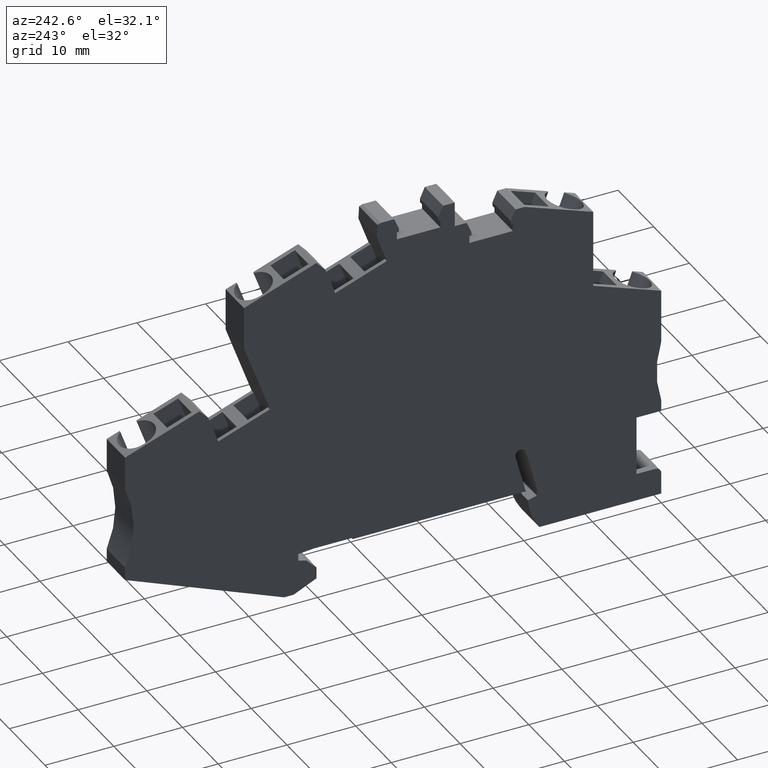
[diagram: clean part render]
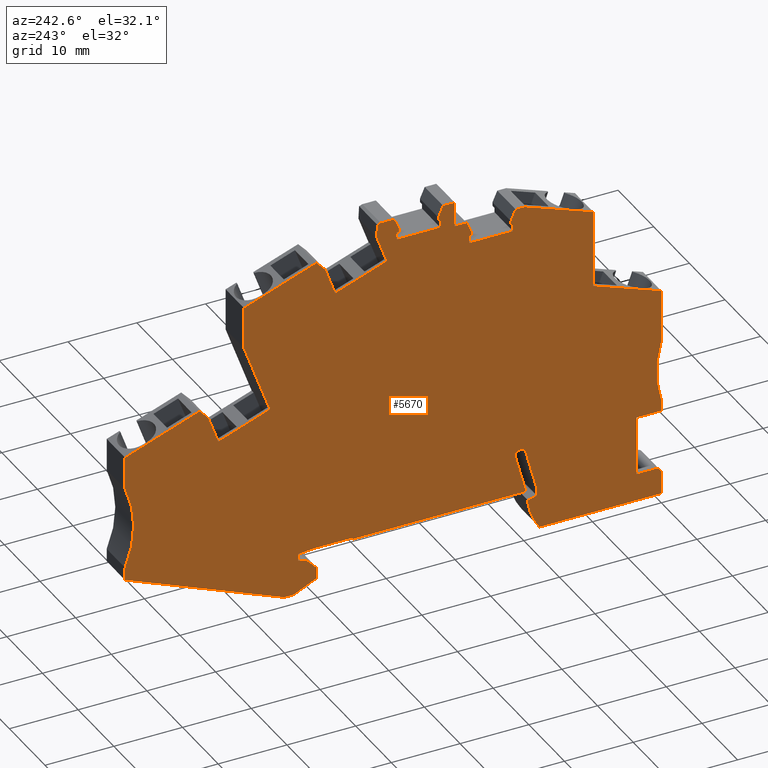
[diagram: same view with one face highlighted and labeled with its STEP entity id]
A machine part, auxiliary view. The second image highlights one B-rep face of the part: STEP entity #5670.
In plain terms, the highlighted planar face has unit normal (-1, 0, 0).
Its self-contained STEP definition (entity closure, byte-faithful):
#10=CARTESIAN_POINT('',(101.113826887599,-53.1567510120277,
48.7600000000302));
#20=DIRECTION('',(-4.8531042333675E-14,-8.75090144671021E-15,-1.));
#30=DIRECTION('',(-1.,0.,4.8531042333675E-14));
#40=AXIS2_PLACEMENT_3D('',#10,#20,#30);
#50=PLANE('',#40);
#60=CARTESIAN_POINT('',(106.837989107538,-53.1567510120277,
48.7600000000299));
#70=DIRECTION('',(-0.402320578210114,0.915498854367759,
1.15135967636753E-14));
#80=VECTOR('',#70,1.);
#90=LINE('',#60,#80);
#100=CARTESIAN_POINT('',(88.7196672216734,-11.9276818866778,
48.7600000000304));
#110=VERTEX_POINT('',#100);
#120=CARTESIAN_POINT('',(88.0225128467016,-10.3412752592971,
48.7600000000304));
#130=VERTEX_POINT('',#120);
#140=EDGE_CURVE('',#110,#130,#90,.T.);
#150=ORIENTED_EDGE('',*,*,#140,.F.);
#160=CARTESIAN_POINT('',(101.113826887599,-10.3412752592971,
48.7600000000298));
#170=DIRECTION('',(-1.,4.24690368568111E-28,4.8531042333675E-14));
#180=VECTOR('',#170,1.);
#190=LINE('',#160,#180);
#200=CARTESIAN_POINT('',(86.7242215350365,-10.3412752592971,
48.7600000000305));
#210=VERTEX_POINT('',#200);
#220=EDGE_CURVE('',#130,#210,#190,.T.);
#230=ORIENTED_EDGE('',*,*,#220,.F.);
#240=CARTESIAN_POINT('',(101.113826887599,-5.10388722812653,
48.7600000000298));
#250=DIRECTION('',(-0.939692620785904,-0.342020143325682,
4.85972469270354E-14));
#260=VECTOR('',#250,1.);
#270=LINE('',#240,#260);
#280=CARTESIAN_POINT('',(76.7321672216756,-13.9780856085318,
48.760000000031));
#290=VERTEX_POINT('',#280);
#300=EDGE_CURVE('',#210,#290,#270,.T.);
#310=ORIENTED_EDGE('',*,*,#300,.F.);
#320=CARTESIAN_POINT('',(76.7321672216756,-53.1567510120277,
48.7600000000314));
#330=DIRECTION('',(4.24690368568111E-28,-1.,8.75090144671021E-15));
#340=VECTOR('',#330,1.);
#350=LINE('',#320,#340);
#360=CARTESIAN_POINT('',(76.7321672216756,-25.258369996776,
48.7600000000311));
#370=VERTEX_POINT('',#360);
#380=EDGE_CURVE('',#290,#370,#350,.T.);
#390=ORIENTED_EDGE('',*,*,#380,.F.);
#400=CARTESIAN_POINT('',(101.113826887599,-16.3841716163707,
48.7600000000299));
#410=DIRECTION('',(-0.939692620785904,-0.342020143325682,
4.85972469270354E-14));
#420=VECTOR('',#410,1.);
#430=LINE('',#400,#420);
#440=CARTESIAN_POINT('',(66.8321672216755,-28.8616753160116,
48.7600000000316));
#450=VERTEX_POINT('',#440);
#460=EDGE_CURVE('',#370,#450,#430,.T.);
#470=ORIENTED_EDGE('',*,*,#460,.F.);
#480=CARTESIAN_POINT('',(66.8321672216755,-53.1567510120277,
48.7600000000318));
#490=DIRECTION('',(4.24690368568111E-28,-1.,8.75090144671021E-15));
#500=VECTOR('',#490,1.);
#510=LINE('',#480,#500);
#520=CARTESIAN_POINT('',(66.8321672216755,-36.5567508894079,
48.7600000000317));
#530=VERTEX_POINT('',#520);
#540=EDGE_CURVE('',#450,#530,#510,.T.);
#550=ORIENTED_EDGE('',*,*,#540,.F.);
#560=CARTESIAN_POINT('',(52.5230792389827,-41.0567510120289,
48.7600000000324));
#570=DIRECTION('',(-4.8531042333675E-14,-8.75090144671021E-15,-1.));
#580=DIRECTION('',(-1.,0.,4.8531042333675E-14));
#590=AXIS2_PLACEMENT_3D('',#560,#570,#580);
#600=CIRCLE('',#590,15.0000000000011);
#610=CARTESIAN_POINT('',(66.8321672602365,-45.556751012034,
48.7600000000318));
#620=VERTEX_POINT('',#610);
#630=EDGE_CURVE('',#530,#620,#600,.T.);
#640=ORIENTED_EDGE('',*,*,#630,.F.);
#650=CARTESIAN_POINT('',(66.8321672602433,-53.1567510120277,
48.7600000000318));
#660=DIRECTION('',(8.91857937436629E-13,-1.,8.75090144666692E-15));
#670=VECTOR('',#660,1.);
#680=LINE('',#650,#670);
#690=CARTESIAN_POINT('',(66.8321672602379,-47.1567510120314,
48.7600000000318));
#700=VERTEX_POINT('',#690);
#710=EDGE_CURVE('',#620,#700,#680,.T.);
#720=ORIENTED_EDGE('',*,*,#710,.F.);
#730=CARTESIAN_POINT('',(101.113826887599,-47.1567510120182,
48.7600000000301));
#740=DIRECTION('',(1.,3.85723199412607E-13,-4.85310423336783E-14));
#750=VECTOR('',#740,1.);
#760=LINE('',#730,#750);
#770=CARTESIAN_POINT('',(70.4321672216711,-47.15675101203,
48.7600000000316));
#780=VERTEX_POINT('',#770);
#790=EDGE_CURVE('',#700,#780,#760,.T.);
#800=ORIENTED_EDGE('',*,*,#790,.F.);
#810=CARTESIAN_POINT('',(70.4321672216734,-53.1567510120277,
48.7600000000317));
#820=DIRECTION('',(3.85723199412608E-13,-1.,8.75090144669149E-15));
#830=VECTOR('',#820,1.);
#840=LINE('',#810,#830);
#850=CARTESIAN_POINT('',(70.4321672216744,-55.7567510120309,
48.7600000000318));
#860=VERTEX_POINT('',#850);
#870=EDGE_CURVE('',#780,#860,#840,.T.);
#880=ORIENTED_EDGE('',*,*,#870,.F.);
#890=CARTESIAN_POINT('',(119.132167221676,-55.7567510120121,
48.7600000000318));
#900=DIRECTION('',(1.,3.85723199412608E-13,0.));
#910=VECTOR('',#900,1.);
#920=LINE('',#890,#910);
#930=CARTESIAN_POINT('',(67.7415687699821,-55.7567510120319,
48.7600000000318));
#940=VERTEX_POINT('',#930);
#950=EDGE_CURVE('',#940,#860,#920,.T.);
#960=ORIENTED_EDGE('',*,*,#950,.T.);
#970=CARTESIAN_POINT('',(67.7321672216754,-56.6567019056306,
48.7600000000318));
#980=DIRECTION('',(4.8531042333675E-14,8.75090144671021E-15,1.));
#990=DIRECTION('',(1.,3.85723199412607E-13,-4.85310423336783E-14));
#1000=AXIS2_PLACEMENT_3D('',#970,#980,#990);
#1010=CIRCLE('',#1000,0.89999999999984);
#1020=CARTESIAN_POINT('',(66.8321672216755,-56.656701905631,
48.7600000000319));
#1030=VERTEX_POINT('',#1020);
#1040=EDGE_CURVE('',#940,#1030,#1010,.T.);
#1050=ORIENTED_EDGE('',*,*,#1040,.F.);
#1060=CARTESIAN_POINT('',(66.8321672216755,-53.1567510120277,
48.7600000000318));
#1070=DIRECTION('',(4.24690368568111E-28,-1.,8.75090144671021E-15));
#1080=VECTOR('',#1070,1.);
#1090=LINE('',#1060,#1080);
#1100=CARTESIAN_POINT('',(66.8321672216755,-59.7567510120319,
48.7600000000319));
#1110=VERTEX_POINT('',#1100);
#1120=EDGE_CURVE('',#1030,#1110,#1090,.T.);
#1130=ORIENTED_EDGE('',*,*,#1120,.F.);
#1140=CARTESIAN_POINT('',(101.113826887599,-59.7567510120314,
48.7600000000302));
#1150=DIRECTION('',(1.,1.5498362828351E-14,-4.85310423336751E-14));
#1160=VECTOR('',#1150,1.);
#1170=LINE('',#1140,#1160);
#1180=CARTESIAN_POINT('',(84.5732235685394,-59.7567510120317,
48.760000000031));
#1190=VERTEX_POINT('',#1180);
#1200=EDGE_CURVE('',#1110,#1190,#1170,.T.);
#1210=ORIENTED_EDGE('',*,*,#1200,.F.);
#1220=CARTESIAN_POINT('',(76.838194542299,-54.2413792237296,
48.7600000000314));
#1230=DIRECTION('',(4.8531042333675E-14,8.75090144671021E-15,1.));
#1240=DIRECTION('',(1.,-4.24690368568111E-28,-4.8531042333675E-14));
#1250=AXIS2_PLACEMENT_3D('',#1220,#1230,#1240);
#1260=CIRCLE('',#1250,9.49999999999899);
#1270=CARTESIAN_POINT('',(86.2321672216754,-55.656751012028,
48.7600000000309));
#1280=VERTEX_POINT('',#1270);
#1290=EDGE_CURVE('',#1190,#1280,#1260,.T.);
#1300=ORIENTED_EDGE('',*,*,#1290,.F.);
#1310=CARTESIAN_POINT('',(86.2321672216645,-38.4000000000014,
48.7600000000308));
#1320=DIRECTION('',(-6.29263798783561E-13,1.,-8.75090144667967E-15));
#1330=VECTOR('',#1320,1.);
#1340=LINE('',#1310,#1330);
#1350=CARTESIAN_POINT('',(86.2321672216751,-55.2050849621875,
48.7600000000309));
#1360=VERTEX_POINT('',#1350);
#1370=EDGE_CURVE('',#1280,#1360,#1340,.T.);
#1380=ORIENTED_EDGE('',*,*,#1370,.F.);
#1390=CARTESIAN_POINT('',(119.132167221676,-64.0206133931754,
48.7600000000294));
#1400=DIRECTION('',(-0.965925826289041,0.258819045102623,
4.46124872105987E-14));
#1410=VECTOR('',#1400,1.);
#1420=LINE('',#1390,#1410);
#1430=CARTESIAN_POINT('',(84.9321672216758,-54.8567510120271,
48.760000000031));
#1440=VERTEX_POINT('',#1430);
#1450=EDGE_CURVE('',#1360,#1440,#1420,.T.);
#1460=ORIENTED_EDGE('',*,*,#1450,.F.);
#1470=CARTESIAN_POINT('',(84.9321672216758,-38.4000000000014,
48.7600000000308));
#1480=DIRECTION('',(-4.24690368568111E-28,1.,-8.75090144671021E-15));
#1490=VECTOR('',#1480,1.);
#1500=LINE('',#1470,#1490);
#1510=CARTESIAN_POINT('',(84.9321672216758,-53.7567510120189,
48.760000000031));
#1520=VERTEX_POINT('',#1510);
#1530=EDGE_CURVE('',#1440,#1520,#1500,.T.);
#1540=ORIENTED_EDGE('',*,*,#1530,.F.);
#1550=CARTESIAN_POINT('',(89.046996253715,-38.4000000000014,
48.7600000000306));
#1560=DIRECTION('',(-0.258819045102717,-0.965925826289016,
2.10134797453286E-14));
#1570=VECTOR('',#1560,1.);
#1580=LINE('',#1550,#1570);
#1590=CARTESIAN_POINT('',(86.5417528210729,-47.7496957759451,
48.7600000000308));
#1600=VERTEX_POINT('',#1590);
#1610=EDGE_CURVE('',#1600,#1520,#1580,.T.);
#1620=ORIENTED_EDGE('',*,*,#1610,.T.);
#1630=CARTESIAN_POINT('',(87.3144934821042,-47.9567510120272,
48.7600000000308));
#1640=DIRECTION('',(4.8531042333675E-14,8.75090144671021E-15,1.));
#1650=DIRECTION('',(1.,-4.24690368568111E-28,-4.8531042333675E-14));
#1660=AXIS2_PLACEMENT_3D('',#1630,#1640,#1650);
#1670=CIRCLE('',#1660,0.80000000000001);
#1680=CARTESIAN_POINT('',(87.5441583374887,-47.1904259803329,
48.7600000000308));
#1690=VERTEX_POINT('',#1680);
#1700=EDGE_CURVE('',#1690,#1600,#1670,.T.);
#1710=ORIENTED_EDGE('',*,*,#1700,.T.);
#1720=CARTESIAN_POINT('',(87.3843069702082,-47.8719298617444,
48.7600000000308));
#1730=DIRECTION('',(4.8531042333675E-14,8.75090144671021E-15,1.));
#1740=DIRECTION('',(1.,-4.24690368568111E-28,-4.8531042333675E-14));
#1750=AXIS2_PLACEMENT_3D('',#1720,#1730,#1740);
#1760=CIRCLE('',#1750,0.700000000000238);
#1770=CARTESIAN_POINT('',(88.0604550486107,-48.0531031933163,
48.7600000000308));
#1780=VERTEX_POINT('',#1770);
#1790=EDGE_CURVE('',#1780,#1690,#1760,.T.);
#1800=ORIENTED_EDGE('',*,*,#1790,.T.);
#1810=CARTESIAN_POINT('',(86.6929367371338,-53.1567510120277,
48.7600000000309));
#1820=DIRECTION('',(-0.25881904510258,-0.965925826289053,
2.10134797453223E-14));
#1830=VECTOR('',#1820,1.);
#1840=LINE('',#1810,#1830);
#1850=CARTESIAN_POINT('',(86.532167221675,-53.7567510120281,
48.7600000000309));
#1860=VERTEX_POINT('',#1850);
#1870=EDGE_CURVE('',#1780,#1860,#1840,.T.);
#1880=ORIENTED_EDGE('',*,*,#1870,.F.);
#1890=CARTESIAN_POINT('',(101.113826887599,-53.7567510120281,
48.7600000000302));
#1900=DIRECTION('',(1.,-4.24690368568111E-28,-4.8531042333675E-14));
#1910=VECTOR('',#1900,1.);
#1920=LINE('',#1890,#1910);
#1930=CARTESIAN_POINT('',(111.632167221676,-53.756751012028,
48.7600000000297));
#1940=VERTEX_POINT('',#1930);
#1950=EDGE_CURVE('',#1860,#1940,#1920,.T.);
#1960=ORIENTED_EDGE('',*,*,#1950,.F.);
#1970=CARTESIAN_POINT('',(111.632167221676,-53.556751012028,
48.7600000000297));
#1980=DIRECTION('',(4.8531042333675E-14,8.75090144671021E-15,1.));
#1990=DIRECTION('',(1.,-4.24690368568111E-28,-4.8531042333675E-14));
#2000=AXIS2_PLACEMENT_3D('',#1970,#1980,#1990);
#2010=CIRCLE('',#2000,0.2);
#2020=CARTESIAN_POINT('',(111.832167221676,-53.5567510120273,
48.7600000000297));
#2030=VERTEX_POINT('',#2020);
#2040=EDGE_CURVE('',#1940,#2030,#2010,.T.);
#2050=ORIENTED_EDGE('',*,*,#2040,.F.);
#2060=CARTESIAN_POINT('',(119.132167221676,-53.5567510120273,
48.7600000000293));
#2070=DIRECTION('',(1.,-6.12323399577924E-17,-4.8531042333675E-14));
#2080=VECTOR('',#2070,1.);
#2090=LINE('',#2060,#2080);
#2100=CARTESIAN_POINT('',(117.346156761124,-53.5567510120273,
48.7600000000294));
#2110=VERTEX_POINT('',#2100);
#2120=EDGE_CURVE('',#2030,#2110,#2090,.T.);
#2130=ORIENTED_EDGE('',*,*,#2120,.F.);
#2140=CARTESIAN_POINT('',(119.132167221676,-53.7130066802643,
48.7600000000293));
#2150=DIRECTION('',(0.996194698091746,-0.0871557427476583,
-4.75836757503735E-14));
#2160=VECTOR('',#2150,1.);
#2170=LINE('',#2140,#2160);
#2180=CARTESIAN_POINT('',(119.632167221676,-53.7567510120272,
48.7600000000293));
#2190=VERTEX_POINT('',#2180);
#2200=EDGE_CURVE('',#2110,#2190,#2170,.T.);
#2210=ORIENTED_EDGE('',*,*,#2200,.F.);
#2220=CARTESIAN_POINT('',(119.632167221676,-60.1454672502116,
48.7600000000293));
#2230=DIRECTION('',(-4.99600361034691E-16,-1.,8.75090144671023E-15));
#2240=VECTOR('',#2230,1.);
#2250=LINE('',#2220,#2240);
#2260=CARTESIAN_POINT('',(119.632167221676,-54.7567510120272,
48.7600000000293));
#2270=VERTEX_POINT('',#2260);
#2280=EDGE_CURVE('',#2190,#2270,#2250,.T.);
#2290=ORIENTED_EDGE('',*,*,#2280,.F.);
#2300=CARTESIAN_POINT('',(101.113826887599,-59.7187253497067,
48.7600000000302));
#2310=DIRECTION('',(-0.965925826289083,-0.258819045102467,
4.91422871230488E-14));
#2320=VECTOR('',#2310,1.);
#2330=LINE('',#2300,#2320);
#2340=CARTESIAN_POINT('',(118.468769762054,-55.0684824218092,
48.7600000000294));
#2350=VERTEX_POINT('',#2340);
#2360=EDGE_CURVE('',#2270,#2350,#2330,.T.);
#2370=ORIENTED_EDGE('',*,*,#2360,.F.);
#2380=CARTESIAN_POINT('',(101.113826887599,-72.4234252962643,
48.7600000000303));
#2390=DIRECTION('',(-0.707106781186548,-0.707106781186547,
4.05044508866569E-14));
#2400=VECTOR('',#2390,1.);
#2410=LINE('',#2380,#2400);
#2420=CARTESIAN_POINT('',(116.982167221676,-56.5550849621876,
48.7600000000294));
#2430=VERTEX_POINT('',#2420);
#2440=EDGE_CURVE('',#2350,#2430,#2410,.T.);
#2450=ORIENTED_EDGE('',*,*,#2440,.F.);
#2460=CARTESIAN_POINT('',(116.982167221676,-53.1567510120277,
48.7600000000294));
#2470=DIRECTION('',(-5.2735593665032E-16,-1.,8.75090144671023E-15));
#2480=VECTOR('',#2470,1.);
#2490=LINE('',#2460,#2480);
#2500=CARTESIAN_POINT('',(116.982167221676,-58.2082408140426,
48.7600000000295));
#2510=VERTEX_POINT('',#2500);
#2520=EDGE_CURVE('',#2430,#2510,#2490,.T.);
#2530=ORIENTED_EDGE('',*,*,#2520,.F.);
#2540=CARTESIAN_POINT('',(101.113826887599,-50.8087121940532,
48.7600000000302));
#2550=DIRECTION('',(0.90630778703666,-0.422618261740679,
-4.02857708219427E-14));
#2560=VECTOR('',#2550,1.);
#2570=LINE('',#2540,#2560);
#2580=CARTESIAN_POINT('',(120.302958057734,-59.7567510120274,
48.7600000000293));
#2590=VERTEX_POINT('',#2580);
#2600=EDGE_CURVE('',#2510,#2590,#2570,.T.);
#2610=ORIENTED_EDGE('',*,*,#2600,.F.);
#2620=CARTESIAN_POINT('',(101.113826887599,-59.7567510120274,
48.7600000000302));
#2630=DIRECTION('',(1.,0.,-4.8531042333675E-14));
#2640=VECTOR('',#2630,1.);
#2650=LINE('',#2620,#2640);
#2660=CARTESIAN_POINT('',(121.69547221685,-59.7567510120274,
48.7600000000292));
#2670=VERTEX_POINT('',#2660);
#2680=EDGE_CURVE('',#2590,#2670,#2650,.T.);
#2690=ORIENTED_EDGE('',*,*,#2680,.F.);
#2700=CARTESIAN_POINT('',(101.113826887599,-68.0482808060336,
48.7600000000303));
#2710=DIRECTION('',(0.927558981852562,0.373676779027864,
-4.82854128814641E-14));
#2720=VECTOR('',#2710,1.);
#2730=LINE('',#2700,#2720);
#2740=CARTESIAN_POINT('',(144.832167236373,-50.4358928872127,
48.760000000028));
#2750=VERTEX_POINT('',#2740);
#2760=EDGE_CURVE('',#2670,#2750,#2730,.T.);
#2770=ORIENTED_EDGE('',*,*,#2760,.F.);
#2780=CARTESIAN_POINT('',(144.832167236373,-53.1567510120277,
48.7600000000281));
#2790=DIRECTION('',(-6.1232339956943E-17,-1.,8.75090144671021E-15));
#2800=VECTOR('',#2790,1.);
#2810=LINE('',#2780,#2800);
#2820=CARTESIAN_POINT('',(144.832167236373,-48.5567510033959,
48.760000000028));
#2830=VERTEX_POINT('',#2820);
#2840=EDGE_CURVE('',#2830,#2750,#2810,.T.);
#2850=ORIENTED_EDGE('',*,*,#2840,.T.);
#2860=CARTESIAN_POINT('',(158.57989432124,-42.5567510033957,
48.7600000000273));
#2870=DIRECTION('',(-4.8531042333675E-14,-8.75090144671021E-15,-1.));
#2880=DIRECTION('',(-1.,0.,4.8531042333675E-14));
#2890=AXIS2_PLACEMENT_3D('',#2860,#2870,#2880);
#2900=CIRCLE('',#2890,15.);
#2910=CARTESIAN_POINT('',(144.832167221676,-36.5567510370718,
48.7600000000279));
#2920=VERTEX_POINT('',#2910);
#2930=EDGE_CURVE('',#2830,#2920,#2900,.T.);
#2940=ORIENTED_EDGE('',*,*,#2930,.F.);
#2950=CARTESIAN_POINT('',(144.832167221676,-53.1567510120277,
48.7600000000281));
#2960=DIRECTION('',(4.24690368568111E-28,-1.,8.75090144671021E-15));
#2970=VECTOR('',#2960,1.);
#2980=LINE('',#2950,#2970);
#2990=CARTESIAN_POINT('',(144.832167221676,-31.7902490553593,
48.7600000000279));
#3000=VERTEX_POINT('',#2990);
#3010=EDGE_CURVE('',#3000,#2920,#2980,.T.);
#3020=ORIENTED_EDGE('',*,*,#3010,.T.);
#3030=CARTESIAN_POINT('',(101.113826887599,-15.8780744822292,
48.7600000000298));
#3040=DIRECTION('',(-0.939692620785863,0.342020143325795,
4.26112777929669E-14));
#3050=VECTOR('',#3040,1.);
#3060=LINE('',#3030,#3050);
#3070=CARTESIAN_POINT('',(133.991244400932,-27.8444758366296,
48.7600000000284));
#3080=VERTEX_POINT('',#3070);
#3090=EDGE_CURVE('',#3000,#3080,#3060,.T.);
#3100=ORIENTED_EDGE('',*,*,#3090,.F.);
#3110=CARTESIAN_POINT('',(110.460405305438,-53.1567510120277,
48.7600000000297));
#3120=DIRECTION('',(-0.680864038377509,-0.73240983147707,
3.94522877238333E-14));
#3130=VECTOR('',#3120,1.);
#3140=LINE('',#3110,#3130);
#3150=CARTESIAN_POINT('',(132.734641273035,-29.1962119149947,
48.7600000000284));
#3160=VERTEX_POINT('',#3150);
#3170=EDGE_CURVE('',#3080,#3160,#3140,.T.);
#3180=ORIENTED_EDGE('',*,*,#3170,.F.);
#3190=CARTESIAN_POINT('',(129.384736367599,-38.4000000000014,
48.7600000000287));
#3200=DIRECTION('',(0.34202014332567,0.939692620785908,
-2.4821751569406E-14));
#3210=VECTOR('',#3200,1.);
#3220=LINE('',#3190,#3210);
#3230=CARTESIAN_POINT('',(131.263954656735,-33.2368901843724,
48.7600000000285));
#3240=VERTEX_POINT('',#3230);
#3250=EDGE_CURVE('',#3240,#3160,#3220,.T.);
#3260=ORIENTED_EDGE('',*,*,#3250,.T.);
#3270=CARTESIAN_POINT('',(119.132167221676,-28.821280669566,
48.7600000000291));
#3280=DIRECTION('',(-0.939692620785908,0.342020143325669,
4.26112777929703E-14));
#3290=VECTOR('',#3280,1.);
#3300=LINE('',#3270,#3290);
#3310=CARTESIAN_POINT('',(123.746413690498,-30.5007290377851,
48.7600000000289));
#3320=VERTEX_POINT('',#3310);
#3330=EDGE_CURVE('',#3240,#3320,#3300,.T.);
#3340=ORIENTED_EDGE('',*,*,#3330,.F.);
#3350=CARTESIAN_POINT('',(120.87131418782,-38.4000000000014,
48.7600000000291));
#3360=DIRECTION('',(-0.342020143328586,-0.939692620784847,
2.48217515695382E-14));
#3370=VECTOR('',#3360,1.);
#3380=LINE('',#3350,#3370);
#3390=CARTESIAN_POINT('',(127.532167221675,-20.0994566953562,
48.7600000000286));
#3400=VERTEX_POINT('',#3390);
#3410=EDGE_CURVE('',#3400,#3320,#3380,.T.);
#3420=ORIENTED_EDGE('',*,*,#3410,.T.);
#3430=CARTESIAN_POINT('',(127.532167221675,-53.1567510120277,
48.7600000000289));
#3440=DIRECTION('',(4.24690368568111E-28,-1.,8.75090144671021E-15));
#3450=VECTOR('',#3440,1.);
#3460=LINE('',#3430,#3450);
#3470=CARTESIAN_POINT('',(127.532167221675,-13.9780856085335,
48.7600000000285));
#3480=VERTEX_POINT('',#3470);
#3490=EDGE_CURVE('',#3480,#3400,#3460,.T.);
#3500=ORIENTED_EDGE('',*,*,#3490,.T.);
#3510=CARTESIAN_POINT('',(101.113826887599,-4.36259608821164,
48.7600000000297));
#3520=DIRECTION('',(-0.939692620785863,0.342020143325795,
4.26112777929669E-14));
#3530=VECTOR('',#3520,1.);
#3540=LINE('',#3510,#3530);
#3550=CARTESIAN_POINT('',(116.991244400931,-10.1415034600837,
48.760000000029));
#3560=VERTEX_POINT('',#3550);
#3570=EDGE_CURVE('',#3480,#3560,#3540,.T.);
#3580=ORIENTED_EDGE('',*,*,#3570,.F.);
#3590=CARTESIAN_POINT('',(77.0033388577188,-53.1567510120277,
48.7600000000313));
#3600=DIRECTION('',(-0.680864038377509,-0.73240983147707,
3.94522877238333E-14));
#3610=VECTOR('',#3600,1.);
#3620=LINE('',#3590,#3610);
#3630=CARTESIAN_POINT('',(115.734641273034,-11.4932395384487,
48.7600000000291));
#3640=VERTEX_POINT('',#3630);
#3650=EDGE_CURVE('',#3560,#3640,#3620,.T.);
#3660=ORIENTED_EDGE('',*,*,#3650,.F.);
#3670=CARTESIAN_POINT('',(105.941381364498,-38.4000000000014,
48.7600000000298));
#3680=DIRECTION('',(-0.34202014332567,-0.939692620785908,
2.4821751569406E-14));
#3690=VECTOR('',#3680,1.);
#3700=LINE('',#3670,#3690);
#3710=CARTESIAN_POINT('',(114.263954656735,-15.5339178078266,
48.7600000000292));
#3720=VERTEX_POINT('',#3710);
#3730=EDGE_CURVE('',#3640,#3720,#3700,.T.);
#3740=ORIENTED_EDGE('',*,*,#3730,.F.);
#3750=CARTESIAN_POINT('',(119.132167221676,-17.3058022755458,
48.760000000029));
#3760=DIRECTION('',(-0.939692620785908,0.342020143325669,
4.26112777929703E-14));
#3770=VECTOR('',#3760,1.);
#3780=LINE('',#3750,#3770);
#3790=CARTESIAN_POINT('',(106.746413690497,-12.7977566612392,
48.7600000000295));
#3800=VERTEX_POINT('',#3790);
#3810=EDGE_CURVE('',#3720,#3800,#3780,.T.);
#3820=ORIENTED_EDGE('',*,*,#3810,.F.);
#3830=CARTESIAN_POINT('',(97.427959184747,-38.4000000000014,
48.7600000000302));
#3840=DIRECTION('',(0.342020143325676,0.939692620785906,
-2.48217515694062E-14));
#3850=VECTOR('',#3840,1.);
#3860=LINE('',#3830,#3850);
#3870=CARTESIAN_POINT('',(108.217100306754,-8.75707839197852,
48.7600000000294));
#3880=VERTEX_POINT('',#3870);
#3890=EDGE_CURVE('',#3800,#3880,#3860,.T.);
#3900=ORIENTED_EDGE('',*,*,#3890,.F.);
#3910=CARTESIAN_POINT('',(110.474991384307,-53.1567510120277,
48.7600000000297));
#3920=DIRECTION('',(-0.0507881482325711,0.99870944923892,
-6.27480619226415E-15));
#3930=VECTOR('',#3920,1.);
#3940=LINE('',#3910,#3930);
#3950=CARTESIAN_POINT('',(108.123365666155,-6.91385955953941,
48.7600000000294));
#3960=VERTEX_POINT('',#3950);
#3970=EDGE_CURVE('',#3880,#3960,#3940,.T.);
#3980=ORIENTED_EDGE('',*,*,#3970,.F.);
#3990=CARTESIAN_POINT('',(101.113826887599,-4.36259608820926,
48.7600000000297));
#4000=DIRECTION('',(-0.939692620785867,0.342020143325783,
4.26112777929673E-14));
#4010=VECTOR('',#4000,1.);
#4020=LINE('',#3990,#4010);
#4030=CARTESIAN_POINT('',(107.649194198292,-6.74127525929864,
48.7600000000295));
#4040=VERTEX_POINT('',#4030);
#4050=EDGE_CURVE('',#3960,#4040,#4020,.T.);
#4060=ORIENTED_EDGE('',*,*,#4050,.F.);
#4070=CARTESIAN_POINT('',(101.113826887599,-6.74127525929864,
48.7600000000298));
#4080=DIRECTION('',(-1.,4.24690368568111E-28,4.8531042333675E-14));
#4090=VECTOR('',#4080,1.);
#4100=LINE('',#4070,#4090);
#4110=CARTESIAN_POINT('',(105.691821596647,-6.74127525929864,
48.7600000000295));
#4120=VERTEX_POINT('',#4110);
#4130=EDGE_CURVE('',#4040,#4120,#4100,.T.);
#4140=ORIENTED_EDGE('',*,*,#4130,.F.);
#4150=CARTESIAN_POINT('',(85.2943072211303,-53.1567510120277,
48.7600000000309));
#4160=DIRECTION('',(0.402320578210114,0.915498854367759,
-2.7536477261972E-14));
#4170=VECTOR('',#4160,1.);
#4180=LINE('',#4150,#4170);
#4190=CARTESIAN_POINT('',(104.994667221676,-8.32768188667772,
48.7600000000296));
#4200=VERTEX_POINT('',#4190);
#4210=EDGE_CURVE('',#4200,#4120,#4180,.T.);
#4220=ORIENTED_EDGE('',*,*,#4210,.T.);
#4230=CARTESIAN_POINT('',(104.994667221676,-53.1567510120277,
48.76000000003));
#4240=DIRECTION('',(4.24690368568111E-28,-1.,8.75090144671021E-15));
#4250=VECTOR('',#4240,1.);
#4260=LINE('',#4230,#4250);
#4270=CARTESIAN_POINT('',(104.994667221676,-8.84627525929466,
48.7600000000296));
#4280=VERTEX_POINT('',#4270);
#4290=EDGE_CURVE('',#4200,#4280,#4260,.T.);
#4300=ORIENTED_EDGE('',*,*,#4290,.F.);
#4310=CARTESIAN_POINT('',(101.113826887599,-8.8462752592947,
48.7600000000298));
#4320=DIRECTION('',(-1.,-1.06581410364015E-14,4.85310423336751E-14));
#4330=VECTOR('',#4320,1.);
#4340=LINE('',#4310,#4330);
#4350=CARTESIAN_POINT('',(105.294667221676,-8.84627525929465,
48.7600000000296));
#4360=VERTEX_POINT('',#4350);
#4370=EDGE_CURVE('',#4360,#4280,#4340,.T.);
#4380=ORIENTED_EDGE('',*,*,#4370,.T.);
#4390=CARTESIAN_POINT('',(105.294667221676,-53.1567510120277,
48.76000000003));
#4400=DIRECTION('',(-1.06581410364015E-14,1.,-8.75090144670969E-15));
#4410=VECTOR('',#4400,1.);
#4420=LINE('',#4390,#4410);
#4430=CARTESIAN_POINT('',(105.294667221676,-9.9162752592943,
48.7600000000296));
#4440=VERTEX_POINT('',#4430);
#4450=EDGE_CURVE('',#4440,#4360,#4420,.T.);
#4460=ORIENTED_EDGE('',*,*,#4450,.T.);
#4470=CARTESIAN_POINT('',(101.113826887599,-9.91627525929434,
48.7600000000298));
#4480=DIRECTION('',(1.,1.06581410364015E-14,-4.85310423336751E-14));
#4490=VECTOR('',#4480,1.);
#4500=LINE('',#4470,#4490);
#4510=CARTESIAN_POINT('',(98.9696672216734,-9.91627525929435,
48.7600000000299));
#4520=VERTEX_POINT('',#4510);
#4530=EDGE_CURVE('',#4520,#4440,#4500,.T.);
#4540=ORIENTED_EDGE('',*,*,#4530,.T.);
#4550=CARTESIAN_POINT('',(98.9696672216739,-53.1567510120277,
48.7600000000303));
#4560=DIRECTION('',(1.06581410364015E-14,-1.,8.75090144670969E-15));
#4570=VECTOR('',#4560,1.);
#4580=LINE('',#4550,#4570);
#4590=CARTESIAN_POINT('',(98.9696672216734,-8.84627525929472,
48.7600000000299));
#4600=VERTEX_POINT('',#4590);
#4610=EDGE_CURVE('',#4600,#4520,#4580,.T.);
#4620=ORIENTED_EDGE('',*,*,#4610,.T.);
#4630=CARTESIAN_POINT('',(99.2696672216734,-8.84627525929472,
48.7600000000299));
#4640=VERTEX_POINT('',#4630);
#4650=EDGE_CURVE('',#4640,#4600,#4340,.T.);
#4660=ORIENTED_EDGE('',*,*,#4650,.T.);
#4670=CARTESIAN_POINT('',(99.2696672216734,-53.1567510120277,
48.7600000000303));
#4680=DIRECTION('',(4.24690368568111E-28,-1.,8.75090144671021E-15));
#4690=VECTOR('',#4680,1.);
#4700=LINE('',#4670,#4690);
#4710=CARTESIAN_POINT('',(99.2696672216734,-8.32768188667783,
48.7600000000299));
#4720=VERTEX_POINT('',#4710);
#4730=EDGE_CURVE('',#4720,#4640,#4700,.T.);
#4740=ORIENTED_EDGE('',*,*,#4730,.T.);
#4750=CARTESIAN_POINT('',(118.970027222219,-53.1567510120277,
48.7600000000293));
#4760=DIRECTION('',(-0.402320578210114,0.915498854367759,
1.15135967636753E-14));
#4770=VECTOR('',#4760,1.);
#4780=LINE('',#4750,#4770);
#4790=CARTESIAN_POINT('',(98.5725128467016,-6.74127525929708,
48.7600000000299));
#4800=VERTEX_POINT('',#4790);
#4810=EDGE_CURVE('',#4720,#4800,#4780,.T.);
#4820=ORIENTED_EDGE('',*,*,#4810,.F.);
#4830=CARTESIAN_POINT('',(101.113826887599,-6.74127525929707,
48.7600000000298));
#4840=DIRECTION('',(-1.,4.24690368568111E-28,4.8531042333675E-14));
#4850=VECTOR('',#4840,1.);
#4860=LINE('',#4830,#4850);
#4870=CARTESIAN_POINT('',(96.8821672216747,-6.74127525929707,
48.76000000003));
#4880=VERTEX_POINT('',#4870);
#4890=EDGE_CURVE('',#4800,#4880,#4860,.T.);
#4900=ORIENTED_EDGE('',*,*,#4890,.F.);
#4910=CARTESIAN_POINT('',(96.8821672216747,-53.1567510120277,
48.7600000000304));
#4920=DIRECTION('',(-4.24690368568111E-28,1.,-8.75090144671021E-15));
#4930=VECTOR('',#4920,1.);
#4940=LINE('',#4910,#4930);
#4950=CARTESIAN_POINT('',(96.8821672216747,-10.3412752592971,
48.76000000003));
#4960=VERTEX_POINT('',#4950);
#4970=EDGE_CURVE('',#4960,#4880,#4940,.T.);
#4980=ORIENTED_EDGE('',*,*,#4970,.T.);
#4990=CARTESIAN_POINT('',(101.113826887599,-10.3412752592971,
48.7600000000298));
#5000=DIRECTION('',(-1.,4.24690368568111E-28,4.8531042333675E-14));
#5010=VECTOR('',#5000,1.);
#5020=LINE('',#4990,#5010);
#5030=CARTESIAN_POINT('',(95.1418215966477,-10.3412752592971,
48.7600000000301));
#5040=VERTEX_POINT('',#5030);
#5050=EDGE_CURVE('',#4960,#5040,#5020,.T.);
#5060=ORIENTED_EDGE('',*,*,#5050,.F.);
#5070=CARTESIAN_POINT('',(76.3263453358111,-53.1567510120277,
48.7600000000314));
#5080=DIRECTION('',(0.402320578210114,0.915498854367759,
-2.7536477261972E-14));
#5090=VECTOR('',#5080,1.);
#5100=LINE('',#5070,#5090);
#5110=CARTESIAN_POINT('',(94.4446672216759,-11.9276818866777,
48.7600000000301));
#5120=VERTEX_POINT('',#5110);
#5130=EDGE_CURVE('',#5120,#5040,#5100,.T.);
#5140=ORIENTED_EDGE('',*,*,#5130,.T.);
#5150=CARTESIAN_POINT('',(94.4446672216759,-53.1567510120277,
48.7600000000305));
#5160=DIRECTION('',(4.24690368568111E-28,-1.,8.75090144671021E-15));
#5170=VECTOR('',#5160,1.);
#5180=LINE('',#5150,#5170);
#5190=CARTESIAN_POINT('',(94.4446672216759,-12.4462752592946,
48.7600000000301));
#5200=VERTEX_POINT('',#5190);
#5210=EDGE_CURVE('',#5120,#5200,#5180,.T.);
#5220=ORIENTED_EDGE('',*,*,#5210,.F.);
#5230=CARTESIAN_POINT('',(101.113826887599,-12.4462752592945,
48.7600000000298));
#5240=DIRECTION('',(-1.,-1.06581410364015E-14,4.85310423336751E-14));
#5250=VECTOR('',#5240,1.);
#5260=LINE('',#5230,#5250);
#5270=CARTESIAN_POINT('',(94.7446672216759,-12.4462752592946,
48.7600000000301));
#5280=VERTEX_POINT('',#5270);
#5290=EDGE_CURVE('',#5280,#5200,#5260,.T.);
#5300=ORIENTED_EDGE('',*,*,#5290,.T.);
#5310=CARTESIAN_POINT('',(94.7446672216764,-53.1567510120277,
48.7600000000305));
#5320=DIRECTION('',(-1.06581410364015E-14,1.,-8.75090144670969E-15));
#5330=VECTOR('',#5320,1.);
#5340=LINE('',#5310,#5330);
#5350=CARTESIAN_POINT('',(94.7446672216759,-13.5162752592944,
48.7600000000301));
#5360=VERTEX_POINT('',#5350);
#5370=EDGE_CURVE('',#5360,#5280,#5340,.T.);
#5380=ORIENTED_EDGE('',*,*,#5370,.T.);
#5390=CARTESIAN_POINT('',(101.113826887599,-13.5162752592943,
48.7600000000298));
#5400=DIRECTION('',(1.,1.06581410364015E-14,-4.85310423336751E-14));
#5410=VECTOR('',#5400,1.);
#5420=LINE('',#5390,#5410);
#5430=CARTESIAN_POINT('',(88.4196672216734,-13.5162752592944,
48.7600000000304));
#5440=VERTEX_POINT('',#5430);
#5450=EDGE_CURVE('',#5440,#5360,#5420,.T.);
#5460=ORIENTED_EDGE('',*,*,#5450,.T.);
#5470=CARTESIAN_POINT('',(88.4196672216738,-53.1567510120277,
48.7600000000308));
#5480=DIRECTION('',(1.06581410364015E-14,-1.,8.75090144670969E-15));
#5490=VECTOR('',#5480,1.);
#5500=LINE('',#5470,#5490);
#5510=CARTESIAN_POINT('',(88.4196672216734,-12.4462752592947,
48.7600000000304));
#5520=VERTEX_POINT('',#5510);
#5530=EDGE_CURVE('',#5520,#5440,#5500,.T.);
#5540=ORIENTED_EDGE('',*,*,#5530,.T.);
#5550=CARTESIAN_POINT('',(88.7196672216734,-12.4462752592947,
48.7600000000304));
#5560=VERTEX_POINT('',#5550);
#5570=EDGE_CURVE('',#5560,#5520,#5260,.T.);
#5580=ORIENTED_EDGE('',*,*,#5570,.T.);
#5590=CARTESIAN_POINT('',(88.7196672216734,-53.1567510120277,
48.7600000000308));
#5600=DIRECTION('',(4.24690368568111E-28,-1.,8.75090144671021E-15));
#5610=VECTOR('',#5600,1.);
#5620=LINE('',#5590,#5610);
#5630=EDGE_CURVE('',#110,#5560,#5620,.T.);
#5640=ORIENTED_EDGE('',*,*,#5630,.T.);
#5650=EDGE_LOOP('',(#5640,#5580,#5540,#5460,#5380,#5300,#5220,#5140,
#5060,#4980,#4900,#4820,#4740,#4660,#4620,#4540,#4460,#4380,#4300,#4220,
#4140,#4060,#3980,#3900,#3820,#3740,#3660,#3580,#3500,#3420,#3340,#3260,
#3180,#3100,#3020,#2940,#2850,#2770,#2690,#2610,#2530,#2450,#2370,#2290,
#2210,#2130,#2050,#1960,#1880,#1800,#1710,#1620,#1540,#1460,#1380,#1300,
#1210,#1130,#1050,#960,#880,#800,#720,#640,#550,#470,#390,#310,#230,#150
));
#5660=FACE_OUTER_BOUND('',#5650,.T.);
#5670=ADVANCED_FACE('',(#5660),#50,.T.);